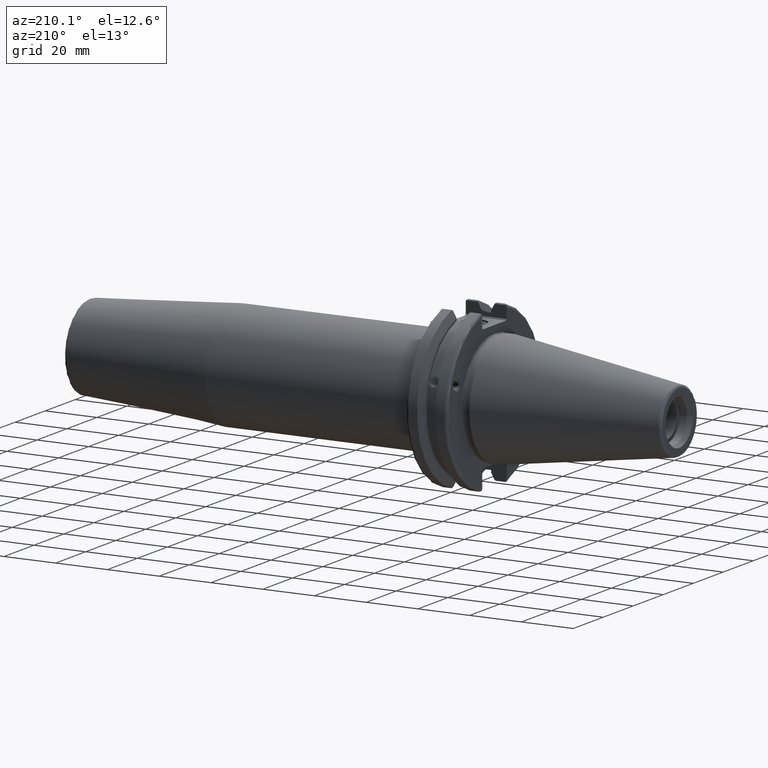
[diagram: clean part render]
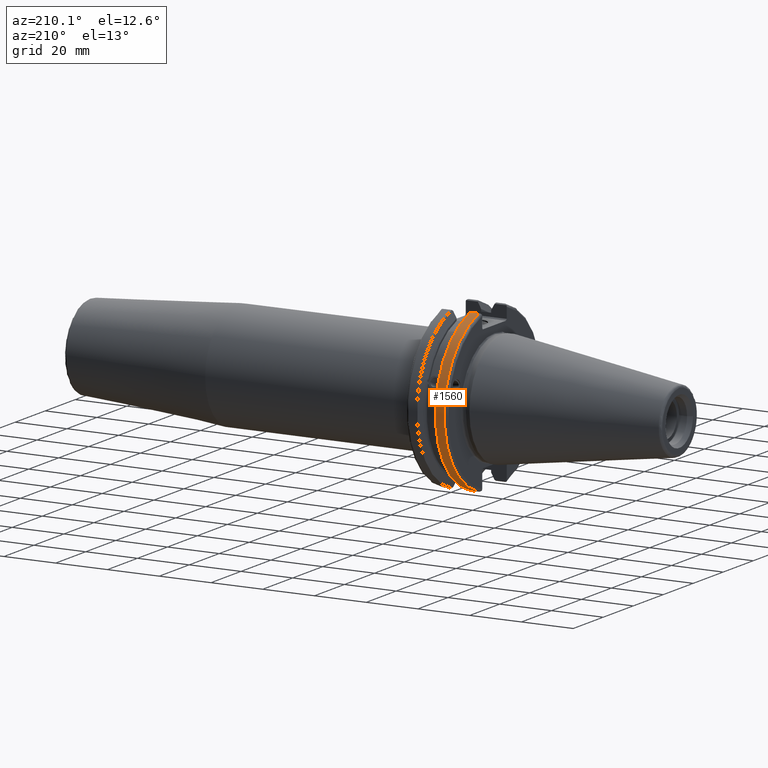
[diagram: same view with one face highlighted and labeled with its STEP entity id]
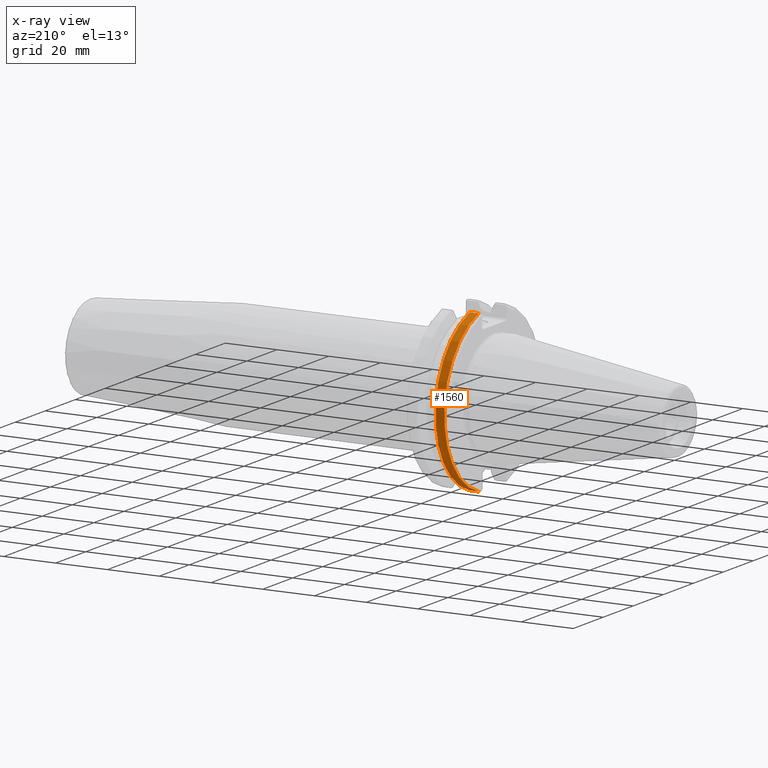
[diagram: x-ray of the same camera — body ghosted, the highlighted face saturated]
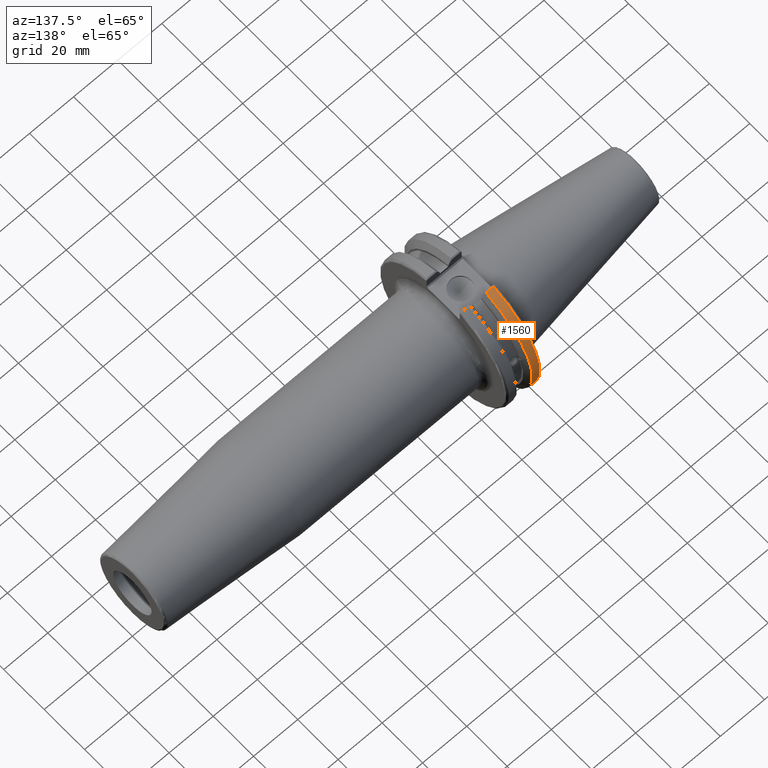
[diagram: same view with one face highlighted and labeled with its STEP entity id]
A machine part, auxiliary view. The second image highlights one B-rep face of the part: STEP entity #1560.
The next image is the same camera in x-ray: the body ghosted, the highlighted face saturated — about 0% of this face is hidden behind the body in this view.
A second angle (auxiliary view) of the same face is appended — the face is thin or edge-on in the first view.
In plain terms, the highlighted cylindrical surface (partial cylindrical patch) has radius 31.75 mm, axis along (1, 0, 0).
Its self-contained STEP definition (entity closure, byte-faithful):
#73=CYLINDRICAL_SURFACE('',#1751,31.75);
#236=LINE('',#2938,#329);
#251=LINE('',#2991,#344);
#329=VECTOR('',#2111,10.);
#344=VECTOR('',#2170,10.);
#434=FACE_OUTER_BOUND('',#534,.T.);
#534=EDGE_LOOP('',(#1410,#1411,#1412,#1413));
#585=CIRCLE('',#1680,31.75);
#607=CIRCLE('',#1727,31.75);
#700=VERTEX_POINT('',#2643);
#701=VERTEX_POINT('',#2647);
#762=VERTEX_POINT('',#2912);
#763=VERTEX_POINT('',#2921);
#882=EDGE_CURVE('',#700,#701,#585,.T.);
#970=EDGE_CURVE('',#762,#763,#607,.T.);
#973=EDGE_CURVE('',#763,#700,#236,.T.);
#997=EDGE_CURVE('',#701,#762,#251,.T.);
#1410=ORIENTED_EDGE('',*,*,#970,.F.);
#1411=ORIENTED_EDGE('',*,*,#997,.F.);
#1412=ORIENTED_EDGE('',*,*,#882,.F.);
#1413=ORIENTED_EDGE('',*,*,#973,.F.);
#1560=ADVANCED_FACE('',(#434),#73,.T.);
#1680=AXIS2_PLACEMENT_3D('',#2648,#1970,#1971);
#1727=AXIS2_PLACEMENT_3D('',#2922,#2107,#2108);
#1751=AXIS2_PLACEMENT_3D('',#2992,#2171,#2172);
#1970=DIRECTION('center_axis',(1.,0.,0.));
#1971=DIRECTION('ref_axis',(0.,0.,-1.));
#2107=DIRECTION('center_axis',(-1.,0.,0.));
#2108=DIRECTION('ref_axis',(0.,1.,1.60812264967664E-16));
#2111=DIRECTION('',(1.,0.,0.));
#2170=DIRECTION('',(-1.,0.,0.));
#2171=DIRECTION('center_axis',(1.,0.,0.));
#2172=DIRECTION('ref_axis',(0.,1.,0.));
#2643=CARTESIAN_POINT('',(7.60793323092436,8.67204822802685,-30.5427254764662));
#2647=CARTESIAN_POINT('',(7.60793323092436,8.67204822802685,30.5427254764662));
#2648=CARTESIAN_POINT('Origin',(7.60793323092436,0.,0.));
#2912=CARTESIAN_POINT('',(4.175,8.67204822802685,30.5427254764662));
#2921=CARTESIAN_POINT('',(4.175,8.67204822802685,-30.5427254764662));
#2922=CARTESIAN_POINT('Origin',(4.175,0.,0.));
#2938=CARTESIAN_POINT('',(5.39146661546218,8.67204822802685,-30.5427254764662));
#2991=CARTESIAN_POINT('',(5.39146661546218,8.67204822802685,30.5427254764662));
#2992=CARTESIAN_POINT('Origin',(5.39146661546218,0.,0.));